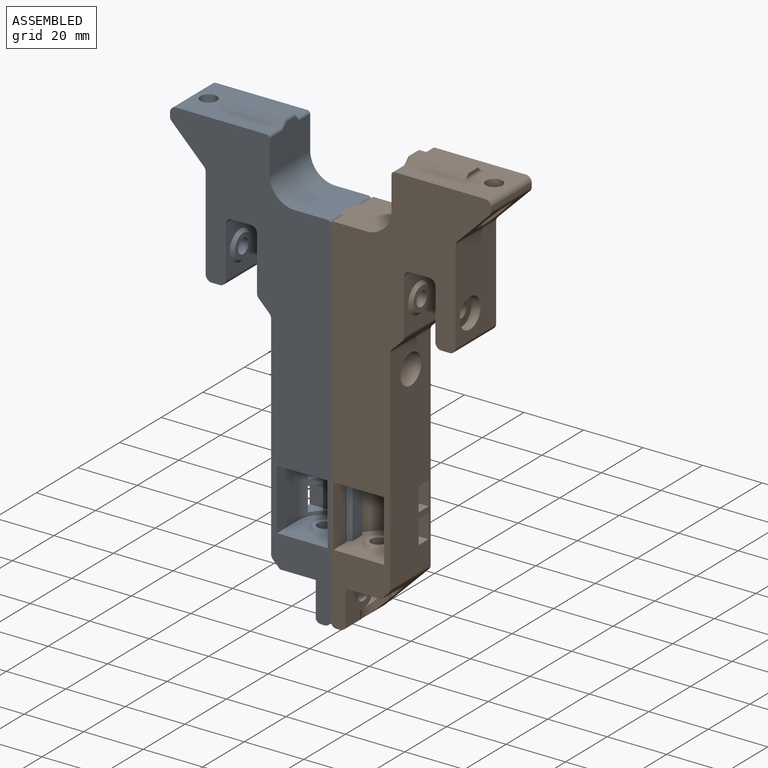
[diagram: assembled view]
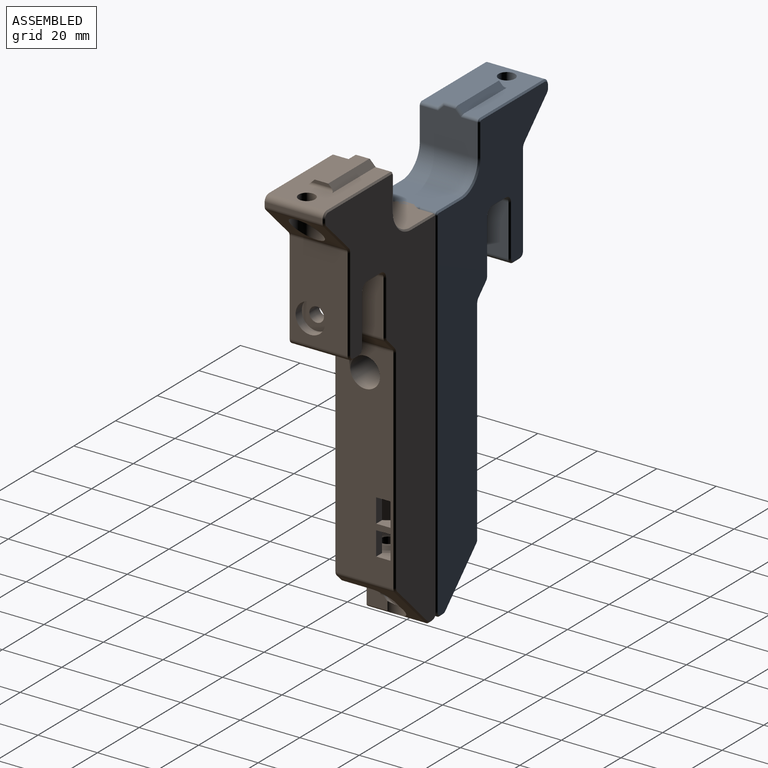
[diagram: assembled view, second angle]
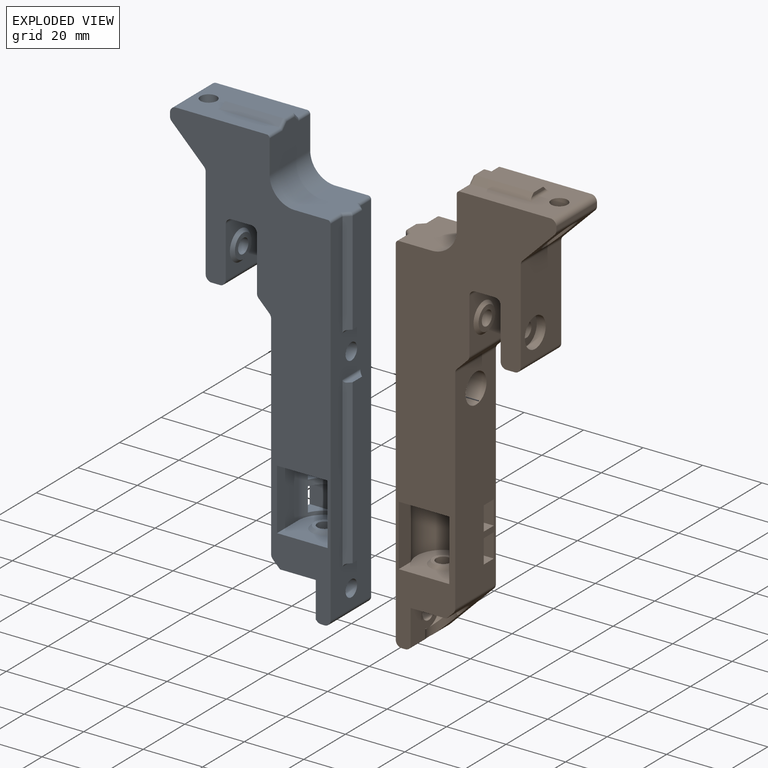
[diagram: exploded view]
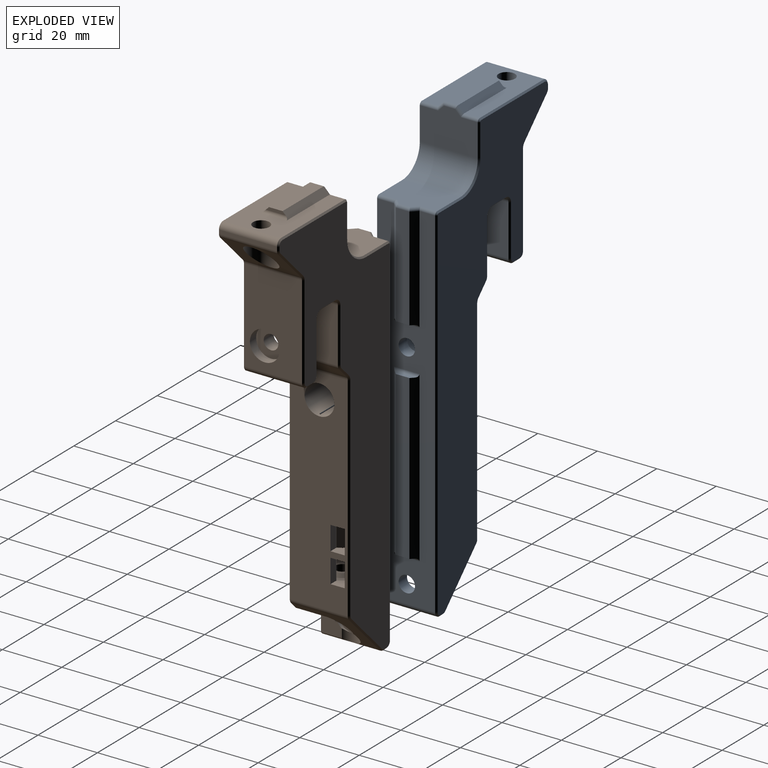
[diagram: exploded view, second angle]
FCSTD DOCUMENT  (FreeCAD 1.0R39109 (Git))
Label: back-idler-mounts
License: All rights reserved
LicenseURL: http://en.wikipedia.org/wiki/All_rights_reserved
objects: Sketcher::SketchObject×15, PartDesign::Pocket×8, PartDesign::Pad×3, PartDesign::Revolution×2, PartDesign::Groove×2, PartDesign::Body×2, App::Link×2, App::Part×2, PartDesign::Fillet×1, PartDesign::Chamfer×1, PartDesign::FeatureBase×1, Part::Mirroring×1
note: 86 computed .brp shape members not serialized (recipe doc carries the construction recipe); baked Part::Feature solids carry a one-line shape summary decoded from their .brp
EXTERNAL_REF file=../standard-stuff.FCStd obj=Body084

FEATURE [Sketcher::SketchObject] Sketch307
  ArcFitTolerance = 0
  AttachmentSupport = -> [XZ_Plane295]
  FullyConstrained = true
  MakeInternals = false
  MapMode = 5
  Placement = pos=(0,0,0) rot=(1,0,0;1.5708rad)
  sketch-geometry (47):
    g0: LineSegment [constr] StartX=-20 StartY=0 StartZ=0 EndX=-20 EndY=-12 EndZ=0
    g1: LineSegment [constr] StartX=-12 StartY=-20 StartZ=0 EndX=0 EndY=-20 EndZ=0
    g2: LineSegment StartX=-20.5 StartY=0 StartZ=0 EndX=-20.5 EndY=-12 EndZ=0
    g3: LineSegment StartX=-12 StartY=-20.5 StartZ=0 EndX=0 EndY=-20.5 EndZ=0
    g4: LineSegment [constr] StartX=0 StartY=-20.5 StartZ=0 EndX=0 EndY=-20 EndZ=0
    g5: LineSegment StartX=-20.5 StartY=0 StartZ=0 EndX=-52 EndY=0 EndZ=0
    g6: LineSegment StartX=-54 StartY=-2 StartZ=0 EndX=-54 EndY=-3.17157 EndZ=0
    g7: LineSegment StartX=-53.4142 StartY=-4.58579 StartZ=0 EndX=-42.5858 EndY=-15.4142 EndZ=0
    g8: LineSegment StartX=-42 StartY=-16.8284 StartZ=0 EndX=-42 EndY=-48 EndZ=0
    g9: LineSegment StartX=-40 StartY=-50 StartZ=0 EndX=-37.25 EndY=-50 EndZ=0
    g10: LineSegment StartX=-35.25 StartY=-48 StartZ=0 EndX=-35.25 EndY=-31 EndZ=0
    g11: LineSegment StartX=-33.25 StartY=-29 StartZ=0 EndX=-26.75 EndY=-29 EndZ=0
    g12: LineSegment StartX=-24.75 StartY=-31 StartZ=0 EndX=-24.75 EndY=-49.1716 EndZ=0
    g13: LineSegment StartX=-24.1642 StartY=-50.5858 StartZ=0 EndX=-20.5858 EndY=-54.1642 EndZ=0
    g14: LineSegment StartX=-20 StartY=-55.5784 StartZ=0 EndX=-20 EndY=-127.172 EndZ=0
    g15: LineSegment StartX=-19.4142 StartY=-128.586 StartZ=0 EndX=-4.58579 EndY=-143.414 EndZ=0
    g16: LineSegment StartX=-3.17157 StartY=-144 StartZ=0 EndX=-2 EndY=-144 EndZ=0
    g17: LineSegment StartX=0 StartY=-142 StartZ=0 EndX=0 EndY=-20.5 EndZ=0
    g18: GeomPoint [constr] X=-30 Y=-50 Z=0
    g19: ArcOfCircle CenterX=-33.25 CenterY=-31 CenterZ=0 NormalX=0 NormalY=0 NormalZ=1 AngleXU=0 Radius=2 StartAngle=1.5708 EndAngle=3.14159
    g20: GeomPoint [constr] X=-35.25 Y=-29 Z=0
    g21: ArcOfCircle CenterX=-26.75 CenterY=-31 CenterZ=0 NormalX=0 NormalY=0 NormalZ=1 AngleXU=0 Radius=2 StartAngle=0 EndAngle=1.5708
    g22: GeomPoint [constr] X=-24.75 Y=-29 Z=0
    g23: ArcOfCircle CenterX=-12 CenterY=-12 CenterZ=0 NormalX=0 NormalY=0 NormalZ=1 AngleXU=0 Radius=8.5 StartAngle=3.14159 EndAngle=4.71239
    g24: ArcOfCircle [constr] CenterX=-12 CenterY=-12 CenterZ=0 NormalX=0 NormalY=0 NormalZ=1 AngleXU=0 Radius=8 StartAngle=3.14159 EndAngle=4.71239
    g25: GeomPoint [constr] X=-20.5 Y=0 Z=0
    g26: ArcOfCircle CenterX=-52 CenterY=-2 CenterZ=0 NormalX=0 NormalY=0 NormalZ=1 AngleXU=0 Radius=2 StartAngle=1.5708 EndAngle=3.14159
    g27: GeomPoint [constr] X=-54 Y=0 Z=0
    g28: ArcOfCircle CenterX=-52 CenterY=-3.17157 CenterZ=0 NormalX=0 NormalY=0 NormalZ=1 AngleXU=0 Radius=2 StartAngle=3.14159 EndAngle=3.92699
    g29: GeomPoint [constr] X=-54 Y=-4 Z=0
    g30: ArcOfCircle CenterX=-44 CenterY=-16.8284 CenterZ=0 NormalX=0 NormalY=0 NormalZ=1 AngleXU=0 Radius=2 StartAngle=7e-16 EndAngle=0.785398
    g31: GeomPoint [constr] X=-42 Y=-16 Z=0
    g32: ArcOfCircle CenterX=-40 CenterY=-48 CenterZ=0 NormalX=0 NormalY=0 NormalZ=1 AngleXU=0 Radius=2 StartAngle=3.14159 EndAngle=4.71239
    g33: GeomPoint [constr] X=-42 Y=-50 Z=0
    g34: ArcOfCircle CenterX=-37.25 CenterY=-48 CenterZ=0 NormalX=0 NormalY=0 NormalZ=1 AngleXU=0 Radius=2 StartAngle=4.71239 EndAngle=6.28319
    g35: GeomPoint [constr] X=-35.25 Y=-50 Z=0
    g36: ArcOfCircle CenterX=-22.75 CenterY=-49.1716 CenterZ=0 NormalX=0 NormalY=0 NormalZ=1 AngleXU=0 Radius=2 StartAngle=3.14159 EndAngle=3.92699
    g37: GeomPoint [constr] X=-24.75 Y=-50 Z=0
    g38: ArcOfCircle CenterX=-22 CenterY=-55.5784 CenterZ=0 NormalX=0 NormalY=0 NormalZ=1 AngleXU=0 Radius=2 StartAngle=0 EndAngle=0.785398
    g39: GeomPoint [constr] X=-20 Y=-54.75 Z=0
    g40: ArcOfCircle CenterX=-18 CenterY=-127.172 CenterZ=0 NormalX=0 NormalY=0 NormalZ=1 AngleXU=0 Radius=2 StartAngle=3.14159 EndAngle=3.92699
    g41: GeomPoint [constr] X=-20 Y=-128 Z=0
    g42: ArcOfCircle CenterX=-3.17157 CenterY=-142 CenterZ=0 NormalX=0 NormalY=0 NormalZ=1 AngleXU=0 Radius=2 StartAngle=3.92699 EndAngle=4.71239
    g43: GeomPoint [constr] X=-4 Y=-144 Z=0
    g44: ArcOfCircle CenterX=-2 CenterY=-142 CenterZ=0 NormalX=0 NormalY=0 NormalZ=1 AngleXU=0 Radius=2 StartAngle=4.71239 EndAngle=6.28319
    g45: GeomPoint [constr] X=0 Y=-144 Z=0
    g46: GeomPoint [constr] X=0 Y=-20.5 Z=0
  constraints (108):
    c: PointOnObject(g0,g-1)
    c: Vertical(g0)
    c: Horizontal(g1)
    c: Equal(g1,g0)
    c: PointOnObject(g1,g-2)
    c: DistanceY(g1) = -20
    c: PointOnObject(g25,g-1)
    c: Vertical(g2)
    c: PointOnObject(g46,g-2)
    c: Horizontal(g3)
    c: Coincident(g4,g46)
    c: Coincident(g4,g1)
    c: PointOnObject(g27,g-1)
    c: Vertical(g6)
    c: Vertical(g8)
    c: Horizontal(g9)
    c: Vertical(g10)
    c: Horizontal(g11)
    c: Vertical(g12)
    c: Vertical(g14)
    c: Horizontal(g16)
    c: Vertical(g17)
    c: DistanceX(g43,g45) = 4
    c: DistanceY(g29,g27) = 4
    c: Angle(g7) = -0.785398
    c: DistanceX(g29,g31) = 12
    c: Horizontal(g35,g37)
    c: DistanceY(g33) = -50
    c: Angle(g15) = -0.785398
    c: DistanceX(g41,g45) = 20
    c: DistanceY(g45) = -144
    c: Symmetric(g35,g37,g18)
    c: DistanceX(g18) = -30
    c: DistanceX(g20,g22) = 10.5
    c: DistanceY(g37,g22) = 21
    c: PointOnObject(g20,g10)
    c: PointOnObject(g20,g11)
    c: Tangent(g10,g19) = 1.5708
    c: Tangent(g11,g19) = 1.5708
    c: PointOnObject(g22,g11)
    c: PointOnObject(g22,g12)
    c: Tangent(g11,g21) = 1.5708
    c: Tangent(g12,g21) = 1.5708
    c: Equal(g21,g19)
    c: Radius(g19) = 2
    c: Angle(g13) = -0.785398
    c: DistanceX(g31) = -42
    c: Tangent(g23,g2) = -1.5708
    c: Tangent(g23,g3) = -1.5708
    c: Coincident(g24,g23)
    c: Tangent(g24,g1) = -1.5708
    c: Tangent(g0,g24) = -1.5708
    c: DistanceY(g0,g0) = 12
    c: DistanceX(g2,g0) = 0.5
    c: PointOnObject(g27,g6)
    c: PointOnObject(g27,g5)
    c: Tangent(g6,g26) = -1.5708
    c: Tangent(g5,g26) = -1.5708
    c: PointOnObject(g29,g6)
    c: PointOnObject(g29,g7)
    c: Tangent(g6,g28) = -1.5708
    c: Tangent(g7,g28) = -1.5708
    c: PointOnObject(g31,g7)
    c: PointOnObject(g31,g8)
    c: Tangent(g7,g30) = 1.5708
    c: Tangent(g8,g30) = 1.5708
    c: PointOnObject(g33,g8)
    c: PointOnObject(g33,g9)
    c: Tangent(g8,g32) = -1.5708
    c: Tangent(g9,g32) = -1.5708
    c: PointOnObject(g35,g9)
    c: PointOnObject(g35,g10)
    c: Tangent(g9,g34) = -1.5708
    c: Tangent(g10,g34) = -1.5708
    c: PointOnObject(g37,g12)
    c: PointOnObject(g37,g13)
    c: Tangent(g12,g36) = -1.5708
    c: Tangent(g13,g36) = -1.5708
    c: PointOnObject(g39,g13)
    c: PointOnObject(g39,g14)
    c: Tangent(g13,g38) = 1.5708
    c: Tangent(g14,g38) = 1.5708
    c: PointOnObject(g41,g14)
    c: PointOnObject(g41,g15)
    c: Tangent(g14,g40) = -1.5708
    c: Tangent(g15,g40) = -1.5708
    c: PointOnObject(g43,g15)
    c: PointOnObject(g43,g16)
    c: Tangent(g15,g42) = -1.5708
    c: Tangent(g16,g42) = -1.5708
    c: PointOnObject(g45,g16)
    c: PointOnObject(g45,g17)
    c: Tangent(g16,g44) = -1.5708
    c: Tangent(g17,g44) = -1.5708
    c: Equal(g26,g28)
    c: Equal(g28,g30)
    c: Equal(g32,g34)
    c: Equal(g34,g36)
    c: Equal(g36,g38)
    c: Equal(g32,g30)
    c: Equal(g44,g42)
    c: Equal(g42,g40)
    c: Equal(g40,g38)
    c: Coincident(g3,g17)
    c: Coincident(g3,g4)
    c: Coincident(g5,g2)
    c: Coincident(g5,g25)
    c: Radius(g26) = 2
FEATURE [PartDesign::Pad] Pad075
  Direction = (0,-1,2e-16)
  Length = 20
  Length2 = 10
  Midplane = true
  Placement = pos=(0,0,0) rot=(1,0,0;1.5708rad)
  Profile = -> Sketch307
  ReferenceAxis = -> Sketch307 [N_Axis]
  Suppressed = false
  Type = 0
FEATURE [Sketcher::SketchObject] Sketch308
  ArcFitTolerance = 0
  AttachmentSupport = -> [XY_Plane295]
  FullyConstrained = true
  MakeInternals = false
  MapMode = 5
  sketch-geometry (9):
    g0: LineSegment [constr] StartX=0 StartY=4.7 StartZ=0 EndX=2 EndY=2.7 EndZ=0
    g1: LineSegment [constr] StartX=2 StartY=2.7 StartZ=0 EndX=2 EndY=-2.7 EndZ=0
    g2: LineSegment [constr] StartX=2 StartY=-2.7 StartZ=0 EndX=0 EndY=-4.7 EndZ=0
    g3: LineSegment [constr] StartX=0 StartY=-4.7 StartZ=0 EndX=0 EndY=4.7 EndZ=0
    g4: LineSegment StartX=0 StartY=4.27574 StartZ=0 EndX=0 EndY=-4.27574 EndZ=0
    g5: LineSegment StartX=0 StartY=-4.27574 StartZ=0 EndX=2 EndY=-2.27574 EndZ=0
    g6: LineSegment StartX=2 StartY=-2.27574 StartZ=0 EndX=2 EndY=2.27574 EndZ=0
    g7: LineSegment StartX=2 StartY=2.27574 StartZ=0 EndX=0 EndY=4.27574 EndZ=0
    g8: LineSegment [constr] StartX=0.787868 StartY=3.48787 StartZ=0 EndX=1 EndY=3.7 EndZ=0
  constraints (23):
    c: PointOnObject(g0,g-2)
    c: Coincident(g0,g1)
    c: Coincident(g1,g2)
    c: Coincident(g2,g3)
    c: Coincident(g3,g0)
    c: Symmetric(g0,g2,g-1)
    c: Symmetric(g0,g1,g-1)
    c: Angle(g2) = -2.35619
    c: DistanceX(g2,g2) = 2
    c: DistanceY(g1,g1) = 5.4
    c: PointOnObject(g4,g3)
    c: Coincident(g4,g5)
    c: PointOnObject(g5,g1)
    c: Coincident(g5,g6)
    c: Coincident(g6,g7)
    c: Coincident(g7,g4)
    c: Symmetric(g6,g5,g-1)
    c: Symmetric(g4,g4,g-1)
    c: Parallel(g5,g2)
    c: PointOnObject(g8,g7)
    c: Symmetric(g0,g0,g8)
    c: Perpendicular(g0,g8)
    c: Distance(g8) = 0.3
FEATURE [PartDesign::Pad] Pad076
  BaseFeature = -> Pad075
  Direction = (0,0,1)
  Length = 127
  Length2 = -20.5
  Placement = pos=(0,0,0) rot=(1,0,0;1.5708rad)
  Profile = -> Sketch308
  ReferenceAxis = -> Sketch308 [N_Axis]
  Refine = true
  Reversed = true
  Suppressed = false
  Type = 4
FEATURE [Sketcher::SketchObject] Sketch309
  ArcFitTolerance = 0
  AttachmentSupport = -> [YZ_Plane295]
  FullyConstrained = true
  MakeInternals = false
  MapMode = 5
  Placement = pos=(0,0,0) rot=(0.57735,0.57735,0.57735;2.0944rad)
  sketch-geometry (9):
    g0: LineSegment [constr] StartX=-4.7 StartY=0 StartZ=0 EndX=-2.7 EndY=2 EndZ=0
    g1: LineSegment [constr] StartX=-2.7 StartY=2 StartZ=0 EndX=2.7 EndY=2 EndZ=0
    g2: LineSegment [constr] StartX=2.7 StartY=2 StartZ=0 EndX=4.7 EndY=0 EndZ=0
    g3: LineSegment [constr] StartX=4.7 StartY=0 StartZ=0 EndX=-4.7 EndY=0 EndZ=0
    g4: LineSegment StartX=-4.27574 StartY=0 StartZ=0 EndX=-2.27574 EndY=2 EndZ=0
    g5: LineSegment StartX=-2.27574 StartY=2 StartZ=0 EndX=2.27574 EndY=2 EndZ=0
    g6: LineSegment StartX=2.27574 StartY=2 StartZ=0 EndX=4.27574 EndY=0 EndZ=0
    g7: LineSegment StartX=4.27574 StartY=0 StartZ=0 EndX=-4.27574 EndY=0 EndZ=0
    g8: LineSegment [constr] StartX=3.7 StartY=1 StartZ=0 EndX=3.48787 EndY=0.787868 EndZ=0
  constraints (23):
    c: PointOnObject(g0,g-1)
    c: Coincident(g0,g1)
    c: Coincident(g1,g2)
    c: Coincident(g2,g3)
    c: Coincident(g3,g0)
    c: Symmetric(g0,g2,g-2)
    c: Symmetric(g1,g0,g-2)
    c: Angle(g2) = -0.785398
    c: DistanceX(g1,g1) = 5.4
    c: DistanceY(g2,g2) = 2
    c: PointOnObject(g4,g3)
    c: PointOnObject(g4,g1)
    c: Coincident(g4,g5)
    c: Coincident(g5,g6)
    c: Coincident(g6,g7)
    c: Coincident(g7,g4)
    c: Symmetric(g4,g6,g-2)
    c: Symmetric(g5,g4,g-2)
    c: Parallel(g6,g2)
    c: PointOnObject(g8,g6)
    c: Symmetric(g2,g1,g8)
    c: Perpendicular(g2,g8)
    c: Distance(g8) = 0.3
FEATURE [PartDesign::Pad] Pad077
  BaseFeature = -> Pad076
  Direction = (1,0,0)
  Length = 41
  Length2 = -20.5
  Placement = pos=(0,0,0) rot=(1,0,0;1.5708rad)
  Profile = -> Sketch309
  ReferenceAxis = -> Sketch309 [N_Axis]
  Refine = true
  Reversed = true
  Suppressed = false
  Type = 4
FEATURE [Sketcher::SketchObject] Sketch310
  ArcFitTolerance = 0
  AttachmentSupport = -> [XZ_Plane295]
  FullyConstrained = true
  MakeInternals = false
  MapMode = 5
  Placement = pos=(0,0,0) rot=(1,0,0;1.5708rad)
  sketch-geometry (4):
    g0: LineSegment StartX=0 StartY=-56 StartZ=0 EndX=2 EndY=-56 EndZ=0
    g1: LineSegment StartX=2 StartY=-56 StartZ=0 EndX=2 EndY=-72 EndZ=0
    g2: LineSegment StartX=2 StartY=-72 StartZ=0 EndX=0 EndY=-72 EndZ=0
    g3: LineSegment StartX=0 StartY=-72 StartZ=0 EndX=0 EndY=-56 EndZ=0
  constraints (12):
    c: PointOnObject(g0,g-2)
    c: Horizontal(g0)
    c: Coincident(g0,g1)
    c: Vertical(g1)
    c: Coincident(g1,g2)
    c: Horizontal(g2)
    c: Coincident(g2,g3)
    c: Coincident(g3,g0)
    c: Vertical(g3)
    c: DistanceX(g2,g2) = 2
    c: DistanceY(g1,g1) = 16
    c: DistanceY(g0) = -56
FEATURE [PartDesign::Pocket] Pocket194
  BaseFeature = -> Pad077
  Direction = (0,1,-2e-16)
  Length = 5
  Length2 = 5
  Midplane = true
  Placement = pos=(0,0,0) rot=(1,0,0;1.5708rad)
  Profile = -> Sketch310
  ReferenceAxis = -> Sketch310 [N_Axis]
  Refine = true
  Suppressed = false
  Type = 1
FEATURE [Sketcher::SketchObject] Sketch311
  ArcFitTolerance = 0
  AttachmentSupport = -> [YZ_Plane295]
  FullyConstrained = true
  MakeInternals = false
  MapMode = 5
  Placement = pos=(0,0,0) rot=(0.57735,0.57735,0.57735;2.0944rad)
  sketch-geometry (2):
    g0: Circle CenterX=0 CenterY=-64 CenterZ=0 NormalX=0 NormalY=0 NormalZ=1 AngleXU=0 Radius=2.75
    g1: Circle CenterX=0 CenterY=-136 CenterZ=0 NormalX=0 NormalY=0 NormalZ=1 AngleXU=0 Radius=2.75
  constraints (6):
    c: PointOnObject(g0,g-2)
    c: PointOnObject(g1,g-2)
    c: DistanceY(g0) = -64
    c: DistanceY(g1) = -136
    c: Equal(g1,g0)
    c: Diameter(g0) = 5.5
FEATURE [PartDesign::Pocket] Pocket195
  BaseFeature = -> Pocket194
  Direction = (-1,0,0)
  Length = 5
  Length2 = 5
  Midplane = true
  Placement = pos=(0,0,0) rot=(1,0,0;1.5708rad)
  Profile = -> Sketch311
  ReferenceAxis = -> Sketch311 [N_Axis]
  Suppressed = false
  Type = 1
FEATURE [Sketcher::SketchObject] Sketch312
  ArcFitTolerance = 0
  AttachmentSupport = -> [XY_Plane295]
  FullyConstrained = true
  MakeInternals = false
  MapMode = 5
  sketch-geometry (1):
    g0: Circle CenterX=-48 CenterY=0 CenterZ=0 NormalX=0 NormalY=0 NormalZ=1 AngleXU=0 Radius=2.75
  constraints (3):
    c: PointOnObject(g0,g-1)
    c: Diameter(g0) = 5.5
    c: DistanceX(g0) = -48
FEATURE [PartDesign::Pocket] Pocket196
  BaseFeature = -> Pocket195
  Direction = (0,0,-1)
  Length = 5
  Length2 = 5
  Midplane = true
  Placement = pos=(0,0,0) rot=(1,0,0;1.5708rad)
  Profile = -> Sketch312
  ReferenceAxis = -> Sketch312 [N_Axis]
  Suppressed = false
  Type = 1
FEATURE [Sketcher::SketchObject] Sketch313
  ArcFitTolerance = 0
  AttachmentOffset = pos=(0,0,-4) rot=(0,0,1;0rad)
  AttachmentSupport = -> [YZ_Plane295]
  FullyConstrained = true
  MakeInternals = false
  MapMode = 5
  Placement = pos=(-4,0,0) rot=(0.57735,0.57735,0.57735;2.0944rad)
  sketch-geometry (2):
    g0: Circle CenterX=0 CenterY=-136 CenterZ=0 NormalX=0 NormalY=0 NormalZ=1 AngleXU=0 Radius=5
    g1: Circle CenterX=0 CenterY=-64 CenterZ=0 NormalX=0 NormalY=0 NormalZ=1 AngleXU=0 Radius=5
  constraints (6):
    c: PointOnObject(g0,g-2)
    c: PointOnObject(g1,g-2)
    c: Equal(g1,g0)
    c: DistanceY(g0) = -136
    c: DistanceY(g1) = -64
    c: Diameter(g0) = 10
FEATURE [PartDesign::Pocket] Pocket197
  BaseFeature = -> Pocket196
  Direction = (-1,0,0)
  Length = 5
  Length2 = 5
  Placement = pos=(0,0,0) rot=(1,0,0;1.5708rad)
  Profile = -> Sketch313
  ReferenceAxis = -> Sketch313 [N_Axis]
  Suppressed = false
  Type = 1
FEATURE [Sketcher::SketchObject] Sketch314
  ArcFitTolerance = 0
  AttachmentOffset = pos=(0,0,-4) rot=(0,0,1;0rad)
  AttachmentSupport = -> [XY_Plane295]
  FullyConstrained = true
  MakeInternals = false
  MapMode = 5
  Placement = pos=(0,0,-4) rot=(0,0,1;0rad)
  sketch-geometry (1):
    g0: Circle CenterX=-48 CenterY=0 CenterZ=0 NormalX=0 NormalY=0 NormalZ=1 AngleXU=0 Radius=5
  constraints (3):
    c: PointOnObject(g0,g-1)
    c: Diameter(g0) = 10
    c: DistanceX(g0) = -48
FEATURE [PartDesign::Pocket] Pocket198
  BaseFeature = -> Pocket197
  Direction = (0,0,-1)
  Length = 5
  Length2 = 5
  Placement = pos=(0,0,0) rot=(1,0,0;1.5708rad)
  Profile = -> Sketch314
  ReferenceAxis = -> Sketch314 [N_Axis]
  Suppressed = false
  Type = 1
FEATURE [Sketcher::SketchObject] Sketch327
  ArcFitTolerance = 0
  AttachmentOffset = pos=(0,0,3) rot=(0,0,1;0rad)
  AttachmentSupport = -> [XZ_Plane295]
  FullyConstrained = true
  MakeInternals = false
  MapMode = 5
  Placement = pos=(0,-3,7e-16) rot=(1,0,0;1.5708rad)
  sketch-geometry (10):
    g0: GeomPoint [constr] X=-24.75 Y=-40 Z=0
    g1: LineSegment StartX=-24.75 StartY=-40 StartZ=0 EndX=-24.75 EndY=-35 EndZ=0
    g2: LineSegment StartX=-24.75 StartY=-35 StartZ=0 EndX=-25.75 EndY=-36 EndZ=0
    g3: LineSegment StartX=-25.75 StartY=-36 StartZ=0 EndX=-25.75 EndY=-40 EndZ=0
    g4: LineSegment StartX=-25.75 StartY=-40 StartZ=0 EndX=-24.75 EndY=-40 EndZ=0
    g5: GeomPoint [constr] X=-30 Y=-40 Z=0
    g6: LineSegment StartX=-34.25 StartY=-40 StartZ=0 EndX=-34.25 EndY=-36 EndZ=0
    g7: LineSegment StartX=-34.25 StartY=-36 StartZ=0 EndX=-35.25 EndY=-35 EndZ=0
    g8: LineSegment StartX=-35.25 StartY=-35 StartZ=0 EndX=-35.25 EndY=-40 EndZ=0
    g9: LineSegment StartX=-35.25 StartY=-40 StartZ=0 EndX=-34.25 EndY=-40 EndZ=0
  constraints (26):
    c: Coincident(g1,g0)
    c: Vertical(g1)
    c: Coincident(g1,g2)
    c: Coincident(g2,g3)
    c: Vertical(g3)
    c: Coincident(g3,g4)
    c: Coincident(g4,g1)
    c: Horizontal(g4)
    c: DistanceX(g4,g4) = 1
    c: DistanceY(g3,g3) = 4
    c: Angle(g2) = -2.35619
    c: DistanceY(g5) = -40
    c: DistanceX(g5) = -30
    c: Vertical(g6)
    c: Coincident(g6,g7)
    c: Coincident(g7,g8)
    c: Vertical(g8)
    c: Coincident(g8,g9)
    c: Coincident(g9,g6)
    c: Horizontal(g9)
    c: Symmetric(g6,g3,g5)
    c: Horizontal(g3,g5)
    c: Equal(g9,g4)
    c: Perpendicular(g2,g7)
    c: DistanceX(g6,g3) = 8.5
    c: Horizontal(g6,g2)
FEATURE [PartDesign::Revolution] Revolution021
  Angle = 360
  Angle2 = 60
  Axis = (1,0,0)
  Base = (-25.75,-3,-40)
  BaseFeature = -> Pocket198
  Placement = pos=(0,0,0) rot=(1,0,0;1.5708rad)
  Profile = -> Sketch327
  ReferenceAxis = -> Sketch327 [Edge4]
  Suppressed = false
  Type = 0
FEATURE [Sketcher::SketchObject] Sketch328
  ArcFitTolerance = 0
  AttachmentOffset = pos=(0,0,3) rot=(0,0,1;0rad)
  AttachmentSupport = -> [XZ_Plane295]
  FullyConstrained = true
  MakeInternals = false
  MapMode = 5
  Placement = pos=(0,-3,7e-16) rot=(1,0,0;1.5708rad)
  sketch-geometry (7):
    g0: GeomPoint [constr] X=-42 Y=-40 Z=0
    g1: LineSegment StartX=-42 StartY=-40 StartZ=0 EndX=-17 EndY=-40 EndZ=0
    g2: LineSegment StartX=-17 StartY=-40 StartZ=0 EndX=-17 EndY=-37.55 EndZ=0
    g3: LineSegment StartX=-17 StartY=-37.55 StartZ=0 EndX=-39 EndY=-37.55 EndZ=0
    g4: LineSegment StartX=-39 StartY=-37.55 StartZ=0 EndX=-39 EndY=-35 EndZ=0
    g5: LineSegment StartX=-39 StartY=-35 StartZ=0 EndX=-42 EndY=-35 EndZ=0
    g6: LineSegment StartX=-42 StartY=-35 StartZ=0 EndX=-42 EndY=-40 EndZ=0
  constraints (19):
    c: DistanceX(g0) = -42
    c: DistanceY(g0) = -40
    c: Coincident(g1,g0)
    c: Horizontal(g1)
    c: Coincident(g1,g2)
    c: Vertical(g2)
    c: Coincident(g2,g3)
    c: Horizontal(g3)
    c: Coincident(g3,g4)
    c: Vertical(g4)
    c: Coincident(g4,g5)
    c: Horizontal(g5)
    c: Coincident(g5,g6)
    c: Coincident(g6,g1)
    c: Vertical(g6)
    c: DistanceX(g3,g3) = 22
    c: DistanceY(g2,g2) = 2.45
    c: DistanceY(g6,g6) = 5
    c: DistanceX(g5,g5) = 3
FEATURE [PartDesign::Groove] Groove013
  Angle = 360
  Angle2 = 60
  Axis = (1,0,0)
  Base = (-42,-3,-40)
  BaseFeature = -> Revolution021
  Placement = pos=(0,0,0) rot=(1,0,0;1.5708rad)
  Profile = -> Sketch328
  ReferenceAxis = -> Sketch328 [Edge1]
  Reversed = true
  Suppressed = false
  Type = 0
FEATURE [Sketcher::SketchObject] Sketch329
  ArcFitTolerance = 0
  AttachmentOffset = pos=(0,0,-110) rot=(0,0,1;0rad)
  AttachmentSupport = -> [XY_Plane295]
  FullyConstrained = true
  MakeInternals = false
  MapMode = 5
  Placement = pos=(0,0,-110) rot=(0,0,1;0rad)
  sketch-geometry (6):
    g0: GeomPoint [constr] X=-9 Y=0 Z=0
    g1: Circle [constr] CenterX=-9 CenterY=0 CenterZ=0 NormalX=0 NormalY=0 NormalZ=1 AngleXU=0 Radius=8
    g2: LineSegment StartX=-18 StartY=3.3e-15 StartZ=0 EndX=-18 EndY=-10 EndZ=0
    g3: LineSegment StartX=-18 StartY=-10 StartZ=0 EndX=-1 EndY=-10 EndZ=0
    g4: ArcOfCircle CenterX=-9 CenterY=0 CenterZ=0 NormalX=0 NormalY=0 NormalZ=1 AngleXU=0 Radius=9 StartAngle=5.8073 EndAngle=9.42478
    g5: LineSegment StartX=-1 StartY=-4.12311 StartZ=0 EndX=-1 EndY=-10 EndZ=0
  constraints (16):
    c: PointOnObject(g0,g-1)
    c: DistanceX(g0) = -9
    c: Coincident(g1,g0)
    c: Diameter(g1) = 16
    c: PointOnObject(g2,g-1)
    c: Vertical(g2)
    c: Coincident(g3,g2)
    c: Horizontal(g3)
    c: DistanceY(g3,g-1) = 10
    c: Coincident(g4,g0)
    c: Coincident(g4,g2)
    c: Coincident(g5,g4)
    c: Coincident(g5,g3)
    c: Vertical(g5)
    c: DistanceX(g3) = -1
    c: PointOnObject(g-1,g4)
FEATURE [PartDesign::Pocket] Pocket211
  BaseFeature = -> Groove013
  Direction = (0,0,-1)
  Length = 20.5
  Length2 = 5
  Midplane = true
  Placement = pos=(0,0,0) rot=(1,0,0;1.5708rad)
  Profile = -> Sketch329
  ReferenceAxis = -> Sketch329 [N_Axis]
  Suppressed = false
  Type = 0
FEATURE [Sketcher::SketchObject] Sketch330
  ArcFitTolerance = 0
  AttachmentSupport = -> [XZ_Plane295]
  FullyConstrained = true
  MakeInternals = false
  MapMode = 5
  Placement = pos=(0,0,0) rot=(1,0,0;1.5708rad)
  sketch-geometry (10):
    g0: GeomPoint [constr] X=-9 Y=-110 Z=0
    g1: GeomPoint [constr] X=-9 Y=-99.75 Z=0
    g2: LineSegment StartX=-9 StartY=-99.75 StartZ=0 EndX=-9 EndY=-100.75 EndZ=0
    g3: LineSegment StartX=-9 StartY=-100.75 StartZ=0 EndX=-5.5 EndY=-100.75 EndZ=0
    g4: LineSegment StartX=-5.5 StartY=-100.75 StartZ=0 EndX=-4.5 EndY=-99.75 EndZ=0
    g5: LineSegment StartX=-4.5 StartY=-99.75 StartZ=0 EndX=-9 EndY=-99.75 EndZ=0
    g6: LineSegment StartX=-9 StartY=-120.25 StartZ=0 EndX=-9 EndY=-119.25 EndZ=0
    g7: LineSegment StartX=-9 StartY=-119.25 StartZ=0 EndX=-5.5 EndY=-119.25 EndZ=0
    g8: LineSegment StartX=-5.5 StartY=-119.25 StartZ=0 EndX=-4.5 EndY=-120.25 EndZ=0
    g9: LineSegment StartX=-4.5 StartY=-120.25 StartZ=0 EndX=-9 EndY=-120.25 EndZ=0
  constraints (25):
    c: DistanceY(g0) = -110
    c: DistanceX(g0) = -9
    c: Vertical(g1,g0)
    c: DistanceY(g0,g1) = 10.25
    c: Coincident(g2,g1)
    c: Vertical(g2)
    c: Coincident(g2,g3)
    c: Horizontal(g3)
    c: Coincident(g3,g4)
    c: Coincident(g4,g5)
    c: Coincident(g5,g2)
    c: Horizontal(g5)
    c: DistanceX(g3,g3) = 3.5
    c: Angle(g4) = 0.785398
    c: DistanceY(g2,g2) = 1
    c: Coincident(g6,g7)
    c: Horizontal(g7)
    c: Coincident(g7,g8)
    c: Coincident(g8,g9)
    c: Coincident(g9,g6)
    c: Horizontal(g9)
    c: Symmetric(g6,g2,g0)
    c: Perpendicular(g4,g8)
    c: Vertical(g7,g3)
    c: Symmetric(g6,g2,g0)
FEATURE [PartDesign::Revolution] Revolution022
  Angle = 360
  Angle2 = 60
  Axis = (0,-2e-16,-1)
  Base = (-9,-2.21e-14,-99.75)
  BaseFeature = -> Pocket211
  Placement = pos=(0,0,0) rot=(1,0,0;1.5708rad)
  Profile = -> Sketch330
  ReferenceAxis = -> Sketch330 [Edge1]
  Suppressed = false
  Type = 0
FEATURE [Sketcher::SketchObject] Sketch331
  ArcFitTolerance = 0
  AttachmentOffset = pos=(0,0,-9) rot=(0,0,1;0rad)
  AttachmentSupport = -> [YZ_Plane295]
  FullyConstrained = true
  MakeInternals = false
  MapMode = 5
  Placement = pos=(-9,0,0) rot=(0.57735,0.57735,0.57735;2.0944rad)
  sketch-geometry (11):
    g0: LineSegment StartX=3.7 StartY=-101 StartZ=0 EndX=8.5 EndY=-101 EndZ=0
    g1: LineSegment StartX=8.5 StartY=-101 StartZ=0 EndX=8.5 EndY=-109 EndZ=0
    g2: LineSegment StartX=8.5 StartY=-109 StartZ=0 EndX=3.7 EndY=-109 EndZ=0
    g3: LineSegment StartX=3.7 StartY=-109 StartZ=0 EndX=3.7 EndY=-101 EndZ=0
    g4: LineSegment StartX=3.7 StartY=-111 StartZ=0 EndX=8.5 EndY=-111 EndZ=0
    g5: LineSegment StartX=8.5 StartY=-111 StartZ=0 EndX=8.5 EndY=-119 EndZ=0
    g6: LineSegment StartX=8.5 StartY=-119 StartZ=0 EndX=3.7 EndY=-119 EndZ=0
    g7: LineSegment StartX=3.7 StartY=-119 StartZ=0 EndX=3.7 EndY=-111 EndZ=0
    g8: GeomPoint [constr] X=6.1 Y=-105 Z=0
    g9: GeomPoint [constr] X=6.1 Y=-115 Z=0
    g10: GeomPoint [constr] X=6.1 Y=-110 Z=0
  constraints (27):
    c: Coincident(g0,g1)
    c: Coincident(g1,g2)
    c: Coincident(g2,g3)
    c: Coincident(g3,g0)
    c: Horizontal(g0)
    c: Horizontal(g2)
    c: Vertical(g1)
    c: Vertical(g3)
    c: Coincident(g4,g5)
    c: Coincident(g5,g6)
    c: Coincident(g6,g7)
    c: Coincident(g7,g4)
    c: Horizontal(g4)
    c: Horizontal(g6)
    c: Vertical(g5)
    c: Vertical(g7)
    c: Vertical(g4,g2)
    c: Vertical(g1,g4)
    c: Symmetric(g9,g8,g10)
    c: Symmetric(g0,g2,g8)
    c: Symmetric(g4,g6,g9)
    c: Equal(g5,g1)
    c: DistanceY(g9,g8) = 10
    c: DistanceY(g10) = -110
    c: DistanceY(g1,g1) = 8
    c: DistanceX(g0) = 8.5
    c: DistanceX(g10) = 6.1
FEATURE [PartDesign::Pocket] Pocket212
  BaseFeature = -> Revolution022
  Direction = (-1,0,0)
  Length = 5
  Length2 = 5
  Placement = pos=(0,0,0) rot=(1,0,0;1.5708rad)
  Profile = -> Sketch331
  ReferenceAxis = -> Sketch331 [N_Axis]
  Suppressed = false
  Type = 1
FEATURE [Sketcher::SketchObject] Sketch332
  ArcFitTolerance = 0
  AttachmentSupport = -> [XZ_Plane295]
  FullyConstrained = true
  MakeInternals = false
  MapMode = 5
  Placement = pos=(0,0,0) rot=(1,0,0;1.5708rad)
  sketch-geometry (7):
    g0: LineSegment StartX=-9 StartY=-144 StartZ=0 EndX=-9 EndY=-96 EndZ=0
    g1: LineSegment StartX=-9 StartY=-96 StartZ=0 EndX=-6.55 EndY=-96 EndZ=0
    g2: LineSegment StartX=-6.55 StartY=-96 StartZ=0 EndX=-6.55 EndY=-123 EndZ=0
    g3: LineSegment StartX=-6.55 StartY=-123 StartZ=0 EndX=-4 EndY=-123 EndZ=0
    g4: LineSegment StartX=-4 StartY=-123 StartZ=0 EndX=-4 EndY=-144 EndZ=0
    g5: LineSegment StartX=-4 StartY=-144 StartZ=0 EndX=-9 EndY=-144 EndZ=0
    g6: GeomPoint [constr] X=-9 Y=-110 Z=0
  constraints (20):
    c: Vertical(g0)
    c: Coincident(g0,g1)
    c: Horizontal(g1)
    c: Coincident(g1,g2)
    c: Vertical(g2)
    c: Coincident(g2,g3)
    c: Horizontal(g3)
    c: Coincident(g3,g4)
    c: Vertical(g4)
    c: Coincident(g4,g5)
    c: Coincident(g5,g0)
    c: Horizontal(g5)
    c: DistanceX(g0) = -9
    c: DistanceX(g1,g1) = 2.45
    c: DistanceY(g2,g2) = 27
    c: DistanceX(g5,g5) = 5
    c: DistanceY(g4) = -144
    c: PointOnObject(g6,g0)
    c: DistanceY(g6) = -110
    c: DistanceY(g2,g6) = 13
FEATURE [PartDesign::Groove] Groove014
  Angle = 360
  Angle2 = 60
  Axis = (0,2e-16,1)
  Base = (-9,-3.2e-14,-144)
  BaseFeature = -> Pocket212
  Placement = pos=(0,0,0) rot=(1,0,0;1.5708rad)
  Profile = -> Sketch332
  ReferenceAxis = -> Sketch332 [Edge1]
  Reversed = true
  Suppressed = false
  Type = 0
FEATURE [Sketcher::SketchObject] Sketch333
  ArcFitTolerance = 0
  AttachmentSupport = -> [XZ_Plane295]
  FullyConstrained = true
  MakeInternals = false
  MapMode = 5
  Placement = pos=(0,0,0) rot=(1,0,0;1.5708rad)
  sketch-geometry (4):
    g0: LineSegment StartX=-20 StartY=-131 StartZ=0 EndX=-5 EndY=-131 EndZ=0
    g1: LineSegment StartX=-5 StartY=-131 StartZ=0 EndX=-5 EndY=-144 EndZ=0
    g2: LineSegment StartX=-5 StartY=-144 StartZ=0 EndX=-20 EndY=-144 EndZ=0
    g3: LineSegment StartX=-20 StartY=-144 StartZ=0 EndX=-20 EndY=-131 EndZ=0
  constraints (12):
    c: Coincident(g0,g1)
    c: Coincident(g1,g2)
    c: Coincident(g2,g3)
    c: Coincident(g3,g0)
    c: Horizontal(g0)
    c: Horizontal(g2)
    c: Vertical(g1)
    c: Vertical(g3)
    c: DistanceY(g1,g1) = 13
    c: DistanceX(g1) = -5
    c: DistanceY(g1) = -144
    c: DistanceX(g2) = -20
FEATURE [PartDesign::Pocket] Pocket213
  BaseFeature = -> Groove014
  Direction = (0,1,-2e-16)
  Length = 0
  Length2 = 5
  Placement = pos=(0,0,0) rot=(1,0,0;1.5708rad)
  Profile = -> Sketch333
  ReferenceAxis = -> Sketch333 [N_Axis]
  Refine = true
  Reversed = true
  Suppressed = false
  Type = 1
FEATURE [PartDesign::Fillet] Fillet009
  Base = -> Pocket213 [Edge2,Edge37,Edge38,Edge39,Edge7,Edge88,Edge87,Edge86,Edge85,Edge84,Edge6,Edge91,Edge96,Edge95]
  BaseFeature = -> Pocket213
  Placement = pos=(0,0,0) rot=(1,0,0;1.5708rad)
  Radius = 1
  SupportTransform = false
  Suppressed = false
  UseAllEdges = false
FEATURE [PartDesign::Chamfer] Chamfer013
  Angle = 45
  Base = -> Fillet009 [Edge14]
  BaseFeature = -> Fillet009
  ChamferType = 0
  FlipDirection = false
  Placement = pos=(0,0,0) rot=(1,0,0;1.5708rad)
  Size = 0.5
  Size2 = 1
  SupportTransform = false
  Suppressed = false
  UseAllEdges = false
FEATURE [PartDesign::Body] Body155  label="z-motion-back-idler-mount-right"
  AllowCompound = false
  Group = -> [Sketch307,Pad075,Sketch308,Pad076,Sketch309,Pad077,Sketch310,Pocket194,Sketch311,Pocket195,Sketch312,Pocket196,Sketch313,Pocket197,Sketch314,Pocket198,Sketch327,Revolution021,Sketch328,Groove013,Sketch329,Pocket211,Sketch330,Revolution022,Sketch331,Pocket212,Sketch332,Groove014,Sketch333,Pocket213,Fillet009,Chamfer013]
  Origin = -> Origin296
  Tip = -> Chamfer013
FEATURE [PartDesign::FeatureBase] Clone
  BaseFeature = -> Body155
  Suppressed = false
FEATURE [PartDesign::Body] Body  label="z-motion-idler-mount-left-drv"
  AllowCompound = false
  Group = -> [Clone]
  Origin = -> Origin
  Tip = -> Clone
FEATURE [Part::Mirroring] Part__Mirroring  label="z-motion-idler-mount-left"
  Base = (0,0,0)
  Normal = (1,0,0)
  Source = -> Body
FEATURE [App::Link] Link  label="idler-right"
  LinkPlacement = pos=(-30,-3,-40) rot=(0,1,0;1.5708rad)
  LinkedObject = -> <external ../standard-stuff.FCStd>#Body084
  Placement = pos=(-30,-3,-40) rot=(0,1,0;1.5708rad)
FEATURE [App::Part] Part  label="main-right"
  Group = -> [Body155,Link]
  Origin = -> Origin297
FEATURE [App::Link] Link001  label="idler-left"
  LinkPlacement = pos=(30,-3,-40) rot=(0,1,0;1.5708rad)
  LinkedObject = -> <external ../standard-stuff.FCStd>#Body084
  Placement = pos=(30,-3,-40) rot=(0,1,0;1.5708rad)
FEATURE [App::Part] Part001  label="main-left"
  Group = -> [Body,Part__Mirroring,Link001]
  Origin = -> Origin298
